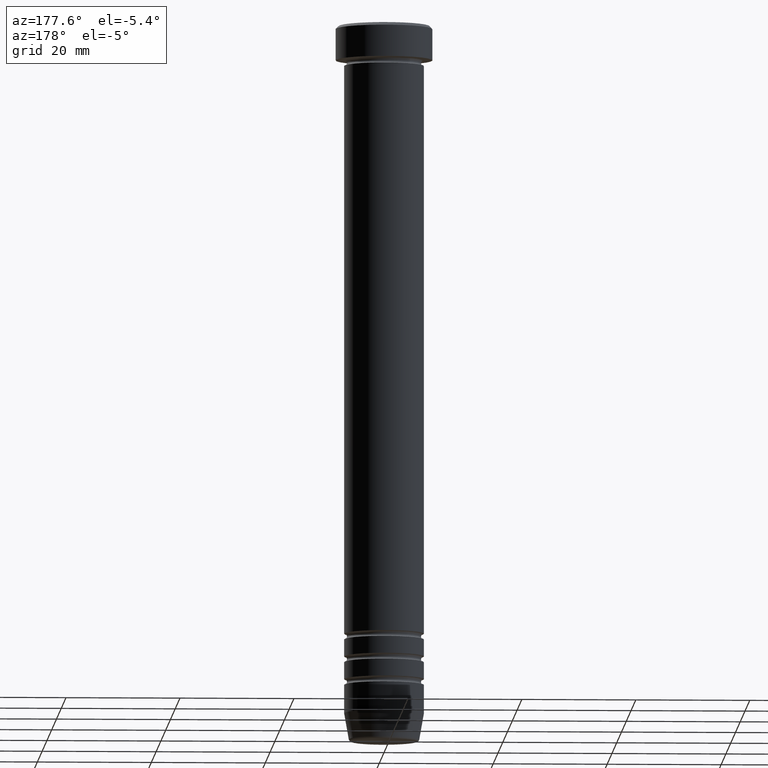
[diagram: clean part render]
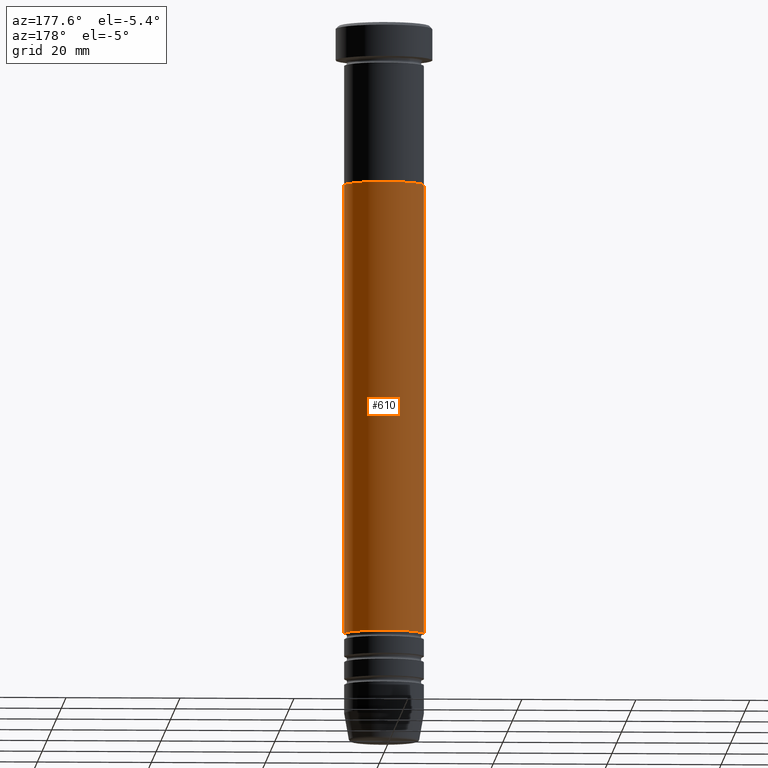
[diagram: same view with one face highlighted and labeled with its STEP entity id]
A machine part, auxiliary view. The second image highlights one B-rep face of the part: STEP entity #610.
In plain terms, the highlighted cylindrical surface (partial cylindrical patch) has radius 7 mm, axis along (-0, -0, 1).
Its self-contained STEP definition (entity closure, byte-faithful):
#4 = EDGE_CURVE ( 'NONE', #922, #1099, #596, .T. ) ;
#6 = DIRECTION ( 'NONE',  ( 1.000000000000000000, 0.000000000000000000, 0.000000000000000000 ) ) ;
#23 = DIRECTION ( 'NONE',  ( -0.000000000000000000, -0.000000000000000000, 1.000000000000000000 ) ) ;
#50 = LINE ( 'NONE', #1111, #825 ) ;
#55 = AXIS2_PLACEMENT_3D ( 'NONE', #1123, #1045, #501 ) ;
#72 = CIRCLE ( 'NONE', #55, 6.999999999999990230 ) ;
#85 = EDGE_CURVE ( 'NONE', #1099, #545, #774, .T. ) ;
#229 = ORIENTED_EDGE ( 'NONE', *, *, #274, .T. ) ;
#270 = VERTEX_POINT ( 'NONE', #705 ) ;
#274 = EDGE_CURVE ( 'NONE', #922, #270, #72, .T. ) ;
#291 = DIRECTION ( 'NONE',  ( -0.000000000000000000, -0.000000000000000000, 1.000000000000000000 ) ) ;
#353 = ORIENTED_EDGE ( 'NONE', *, *, #4, .F. ) ;
#379 = CYLINDRICAL_SURFACE ( 'NONE', #910, 6.999999999999994671 ) ;
#386 = DIRECTION ( 'NONE',  ( -0.000000000000000000, -0.000000000000000000, 1.000000000000000000 ) ) ;
#501 = DIRECTION ( 'NONE',  ( 1.000000000000000000, 0.000000000000000000, 0.000000000000000000 ) ) ;
#545 = VERTEX_POINT ( 'NONE', #681 ) ;
#555 = DIRECTION ( 'NONE',  ( 1.000000000000000000, 0.000000000000000000, 0.000000000000000000 ) ) ;
#596 = LINE ( 'NONE', #1100, #1148 ) ;
#610 = ADVANCED_FACE ( 'NONE', ( #821 ), #379, .T. ) ;
#635 = AXIS2_PLACEMENT_3D ( 'NONE', #1083, #386, #6 ) ;
#681 = CARTESIAN_POINT ( 'NONE',  ( -6.999999999999999112, 8.572527594031472204E-16, -28.00000000000000000 ) ) ;
#687 = CARTESIAN_POINT ( 'NONE',  ( 6.999999999999999112, 0.000000000000000000, -28.00000000000000000 ) ) ;
#705 = CARTESIAN_POINT ( 'NONE',  ( -6.999999999999990230, 8.572527594031464315E-16, -107.0000000000000142 ) ) ;
#708 = EDGE_LOOP ( 'NONE', ( #229, #1131, #755, #353 ) ) ;
#745 = CARTESIAN_POINT ( 'NONE',  ( 0.000000000000000000, 0.000000000000000000, 0.000000000000000000 ) ) ;
#755 = ORIENTED_EDGE ( 'NONE', *, *, #85, .F. ) ;
#774 = CIRCLE ( 'NONE', #635, 6.999999999999999112 ) ;
#821 = FACE_OUTER_BOUND ( 'NONE', #708, .T. ) ;
#825 = VECTOR ( 'NONE', #23, 1000.000000000000000 ) ;
#908 = CARTESIAN_POINT ( 'NONE',  ( 6.999999999999990230, 0.000000000000000000, -107.0000000000000142 ) ) ;
#910 = AXIS2_PLACEMENT_3D ( 'NONE', #745, #291, #555 ) ;
#922 = VERTEX_POINT ( 'NONE', #908 ) ;
#930 = DIRECTION ( 'NONE',  ( -0.000000000000000000, -0.000000000000000000, 1.000000000000000000 ) ) ;
#987 = EDGE_CURVE ( 'NONE', #270, #545, #50, .T. ) ;
#1045 = DIRECTION ( 'NONE',  ( -0.000000000000000000, -0.000000000000000000, 1.000000000000000000 ) ) ;
#1083 = CARTESIAN_POINT ( 'NONE',  ( 0.000000000000000000, 0.000000000000000000, -28.00000000000000000 ) ) ;
#1099 = VERTEX_POINT ( 'NONE', #687 ) ;
#1100 = CARTESIAN_POINT ( 'NONE',  ( 6.999999999999994671, 0.000000000000000000, 0.000000000000000000 ) ) ;
#1111 = CARTESIAN_POINT ( 'NONE',  ( -6.999999999999994671, 8.572527594031466287E-16, 0.000000000000000000 ) ) ;
#1123 = CARTESIAN_POINT ( 'NONE',  ( 0.000000000000000000, 0.000000000000000000, -107.0000000000000142 ) ) ;
#1131 = ORIENTED_EDGE ( 'NONE', *, *, #987, .T. ) ;
#1148 = VECTOR ( 'NONE', #930, 1000.000000000000000 ) ;